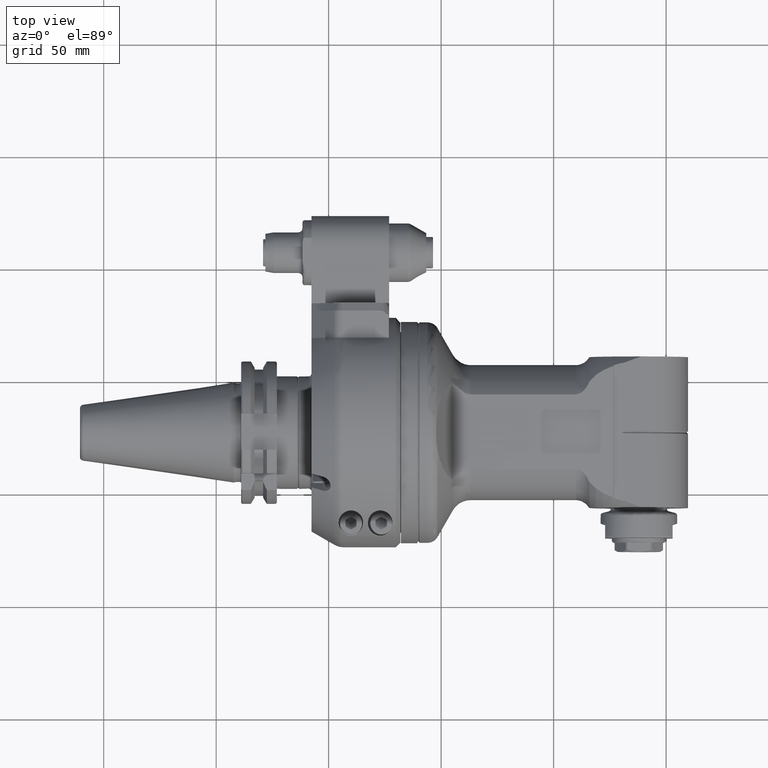
[diagram: clean part render]
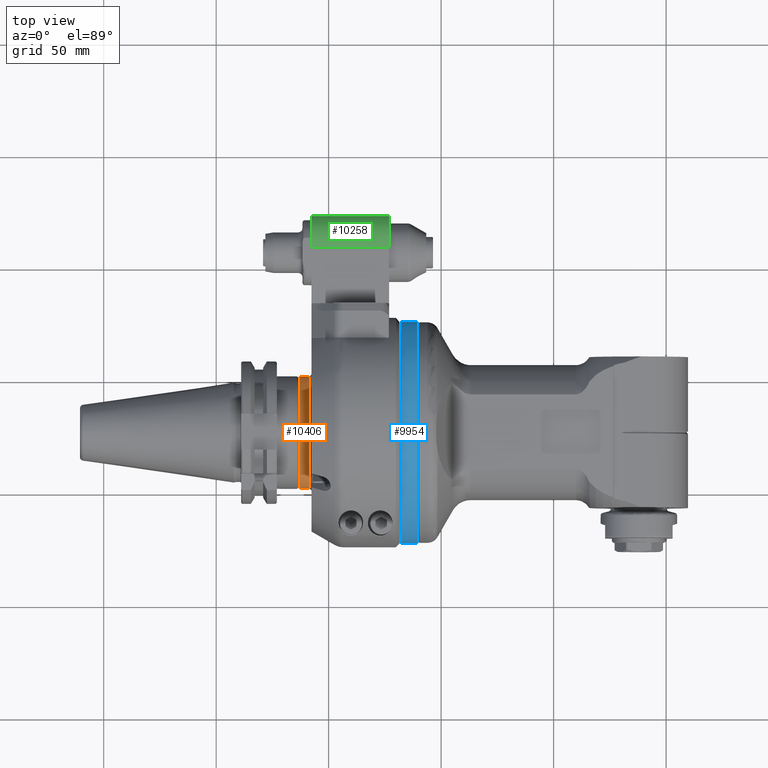
[diagram: same view with three faces highlighted in distinct colors, each labeled with its STEP entity id]
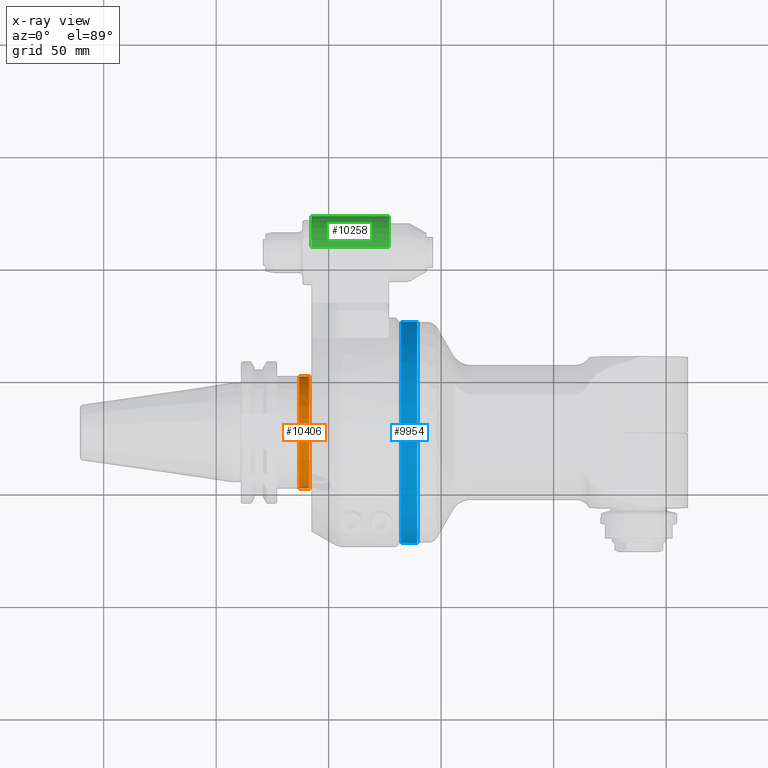
[diagram: x-ray of the same camera — body ghosted, the three highlighted faces saturated]
A machine part, top view with three faces highlighted in distinct colors.
The next image is the same camera in x-ray (body ghosted, the three faces saturated) — at least one of them is partly hidden behind the body in this view.
Their STEP definitions:

[orange] entity #10406 — the highlighted cylindrical surface (bore or boss wall) has radius 25 mm, axis along (-1, -0, -0).
#1212=LINE('',#59459,#1885);
#1885=VECTOR('',#14282,25.);
#2143=CYLINDRICAL_SURFACE('',#11554,25.);
#2681=FACE_OUTER_BOUND('',#3405,.T.);
#3405=EDGE_LOOP('',(#9060,#9061,#9062,#9063,#9064,#9065));
#3977=CIRCLE('',#11552,25.);
#3978=CIRCLE('',#11553,25.);
#3979=CIRCLE('',#11555,25.);
#3980=CIRCLE('',#11556,25.);
#4899=VERTEX_POINT('',#59452);
#4900=VERTEX_POINT('',#59453);
#4901=VERTEX_POINT('',#59458);
#4902=VERTEX_POINT('',#59460);
#6325=EDGE_CURVE('',#4899,#4900,#3977,.T.);
#6327=EDGE_CURVE('',#4900,#4899,#3978,.T.);
#6328=EDGE_CURVE('',#4899,#4901,#1212,.T.);
#6329=EDGE_CURVE('',#4902,#4901,#3979,.T.);
#6330=EDGE_CURVE('',#4901,#4902,#3980,.T.);
#9060=ORIENTED_EDGE('',*,*,#6325,.F.);
#9061=ORIENTED_EDGE('',*,*,#6328,.T.);
#9062=ORIENTED_EDGE('',*,*,#6329,.F.);
#9063=ORIENTED_EDGE('',*,*,#6330,.F.);
#9064=ORIENTED_EDGE('',*,*,#6328,.F.);
#9065=ORIENTED_EDGE('',*,*,#6327,.F.);
#10406=ADVANCED_FACE('',(#2681),#2143,.T.);
#11552=AXIS2_PLACEMENT_3D('',#59454,#14275,#14276);
#11553=AXIS2_PLACEMENT_3D('',#59456,#14278,#14279);
#11554=AXIS2_PLACEMENT_3D('',#59457,#14280,#14281);
#11555=AXIS2_PLACEMENT_3D('',#59461,#14283,#14284);
#11556=AXIS2_PLACEMENT_3D('',#59462,#14285,#14286);
#14275=DIRECTION('center_axis',(-1.,0.,0.));
#14276=DIRECTION('ref_axis',(0.,1.,0.));
#14278=DIRECTION('center_axis',(-1.,0.,0.));
#14279=DIRECTION('ref_axis',(0.,1.,0.));
#14280=DIRECTION('center_axis',(-1.,0.,0.));
#14281=DIRECTION('ref_axis',(0.,0.,-1.));
#14282=DIRECTION('',(1.,0.,0.));
#14283=DIRECTION('center_axis',(1.,0.,0.));
#14284=DIRECTION('ref_axis',(0.,1.,0.));
#14285=DIRECTION('center_axis',(1.,0.,0.));
#14286=DIRECTION('ref_axis',(0.,1.,0.));
#59452=CARTESIAN_POINT('',(-57.,3.06161699786838E-15,25.));
#59453=CARTESIAN_POINT('',(-57.,-25.,-3.06161699786838E-15));
#59454=CARTESIAN_POINT('Origin',(-57.,0.,0.));
#59456=CARTESIAN_POINT('Origin',(-57.,0.,0.));
#59457=CARTESIAN_POINT('Origin',(-57.5,0.,0.));
#59458=CARTESIAN_POINT('',(-52.5,3.06161699786838E-15,25.));
#59459=CARTESIAN_POINT('',(-57.5,3.06161699786838E-15,25.));
#59460=CARTESIAN_POINT('',(-52.5,25.,0.));
#59461=CARTESIAN_POINT('Origin',(-52.5,0.,0.));
#59462=CARTESIAN_POINT('Origin',(-52.5,0.,0.));

[blue] entity #9954 — the highlighted cylindrical surface (bore or boss wall) has radius 49.2 mm, axis along (1, -0, 0).
#715=LINE('',#15414,#1388);
#1388=VECTOR('',#12133,49.2);
#2019=CYLINDRICAL_SURFACE('',#10728,49.2);
#2229=FACE_OUTER_BOUND('',#2871,.T.);
#2871=EDGE_LOOP('',(#6931,#6932,#6933,#6934));
#3605=CIRCLE('',#10727,49.2);
#3606=CIRCLE('',#10729,49.2);
#4208=VERTEX_POINT('',#15410);
#4209=VERTEX_POINT('',#15413);
#5270=EDGE_CURVE('',#4208,#4208,#3605,.T.);
#5271=EDGE_CURVE('',#4208,#4209,#715,.T.);
#5272=EDGE_CURVE('',#4209,#4209,#3606,.T.);
#6931=ORIENTED_EDGE('',*,*,#5270,.F.);
#6932=ORIENTED_EDGE('',*,*,#5271,.T.);
#6933=ORIENTED_EDGE('',*,*,#5272,.T.);
#6934=ORIENTED_EDGE('',*,*,#5271,.F.);
#9954=ADVANCED_FACE('',(#2229),#2019,.T.);
#10727=AXIS2_PLACEMENT_3D('',#15411,#12129,#12130);
#10728=AXIS2_PLACEMENT_3D('',#15412,#12131,#12132);
#10729=AXIS2_PLACEMENT_3D('',#15415,#12134,#12135);
#12129=DIRECTION('center_axis',(1.,0.,0.));
#12130=DIRECTION('ref_axis',(0.,1.,0.));
#12131=DIRECTION('center_axis',(1.,0.,0.));
#12132=DIRECTION('ref_axis',(0.,-1.,0.));
#12133=DIRECTION('',(-1.,0.,0.));
#12134=DIRECTION('center_axis',(1.,0.,0.));
#12135=DIRECTION('ref_axis',(0.,1.,0.));
#15410=CARTESIAN_POINT('',(11.5,49.2,-5.2936427203805E-14));
#15411=CARTESIAN_POINT('Origin',(11.5,0.,-5.896168945561E-14));
#15412=CARTESIAN_POINT('Origin',(3.835,0.,-5.896168945561E-14));
#15413=CARTESIAN_POINT('',(4.2,49.2,-5.2936427203805E-14));
#15414=CARTESIAN_POINT('',(3.835,49.2,-5.2936427203805E-14));
#15415=CARTESIAN_POINT('Origin',(4.2,0.,-5.896168945561E-14));

[green] entity #10258 — the highlighted cylindrical surface (edge-blend (fillet) strip) has radius 14 mm, axis along (-1, -0, -0).
#1064=LINE('',#17395,#1737);
#1065=LINE('',#17397,#1738);
#1737=VECTOR('',#13638,34.5);
#1738=VECTOR('',#13641,34.5);
#2104=CYLINDRICAL_SURFACE('',#11307,14.);
#2533=FACE_OUTER_BOUND('',#3238,.T.);
#3238=EDGE_LOOP('',(#8379,#8380,#8381,#8382));
#3856=CIRCLE('',#11275,14.);
#3865=CIRCLE('',#11293,14.);
#4650=VERTEX_POINT('',#17275);
#4651=VERTEX_POINT('',#17277);
#4676=VERTEX_POINT('',#17355);
#4677=VERTEX_POINT('',#17357);
#5936=EDGE_CURVE('',#4650,#4651,#3856,.T.);
#5973=EDGE_CURVE('',#4676,#4677,#3865,.T.);
#5993=EDGE_CURVE('',#4676,#4651,#1064,.T.);
#5994=EDGE_CURVE('',#4650,#4677,#1065,.T.);
#8379=ORIENTED_EDGE('',*,*,#5994,.T.);
#8380=ORIENTED_EDGE('',*,*,#5973,.F.);
#8381=ORIENTED_EDGE('',*,*,#5993,.T.);
#8382=ORIENTED_EDGE('',*,*,#5936,.F.);
#10258=ADVANCED_FACE('',(#2533),#2104,.T.);
#11275=AXIS2_PLACEMENT_3D('',#17278,#13539,#13540);
#11293=AXIS2_PLACEMENT_3D('',#17358,#13599,#13600);
#11307=AXIS2_PLACEMENT_3D('',#17396,#13639,#13640);
#13539=DIRECTION('center_axis',(1.,0.,0.));
#13540=DIRECTION('ref_axis',(0.,1.,0.));
#13599=DIRECTION('center_axis',(-1.,0.,0.));
#13600=DIRECTION('ref_axis',(0.,0.,1.));
#13638=DIRECTION('',(1.,0.,0.));
#13639=DIRECTION('center_axis',(-1.,0.,0.));
#13640=DIRECTION('ref_axis',(0.,-1.,0.));
#13641=DIRECTION('',(-1.,0.,0.));
#17275=CARTESIAN_POINT('',(-17.,96.25,1.));
#17277=CARTESIAN_POINT('',(-17.,82.25,15.));
#17278=CARTESIAN_POINT('Origin',(-17.,82.25,1.));
#17355=CARTESIAN_POINT('',(-51.5,82.25,15.));
#17357=CARTESIAN_POINT('',(-51.5,96.25,1.));
#17358=CARTESIAN_POINT('Origin',(-51.5,82.25,1.));
#17395=CARTESIAN_POINT('',(-51.5,82.25,15.));
#17396=CARTESIAN_POINT('Origin',(-43.,82.25,1.));
#17397=CARTESIAN_POINT('',(-17.,96.25,1.));